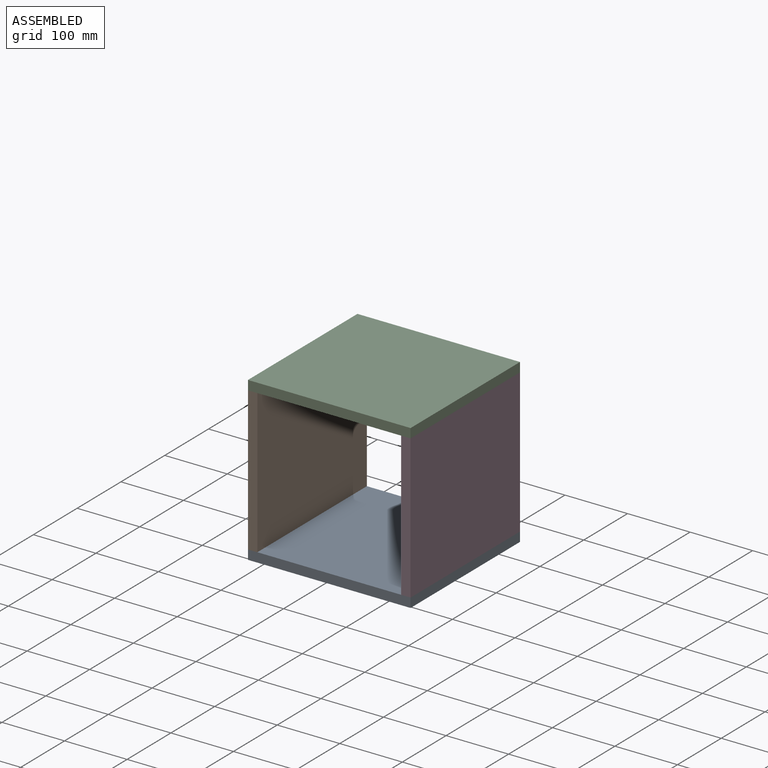
[diagram: assembled view]
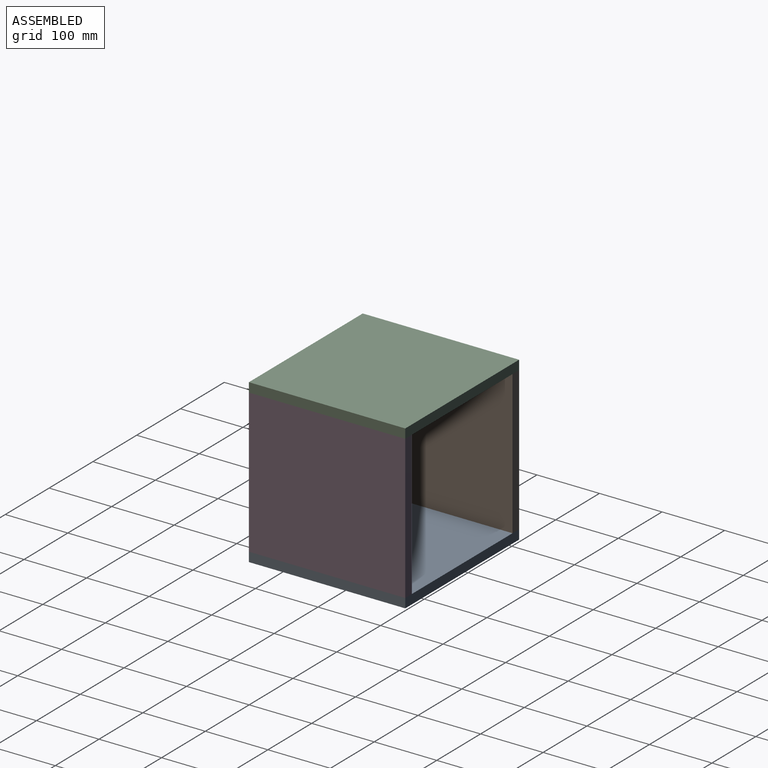
[diagram: assembled view, second angle]
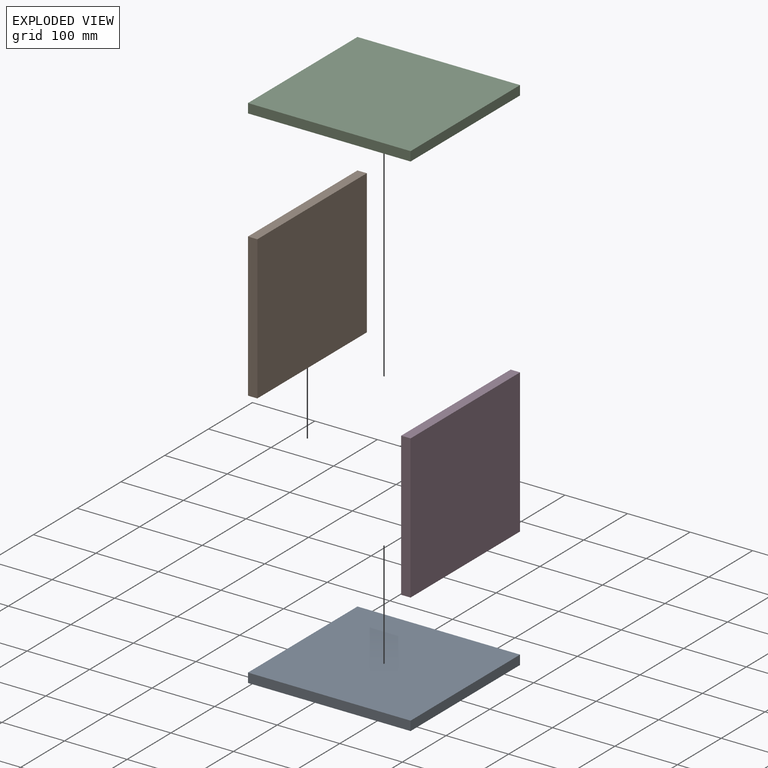
[diagram: exploded view]
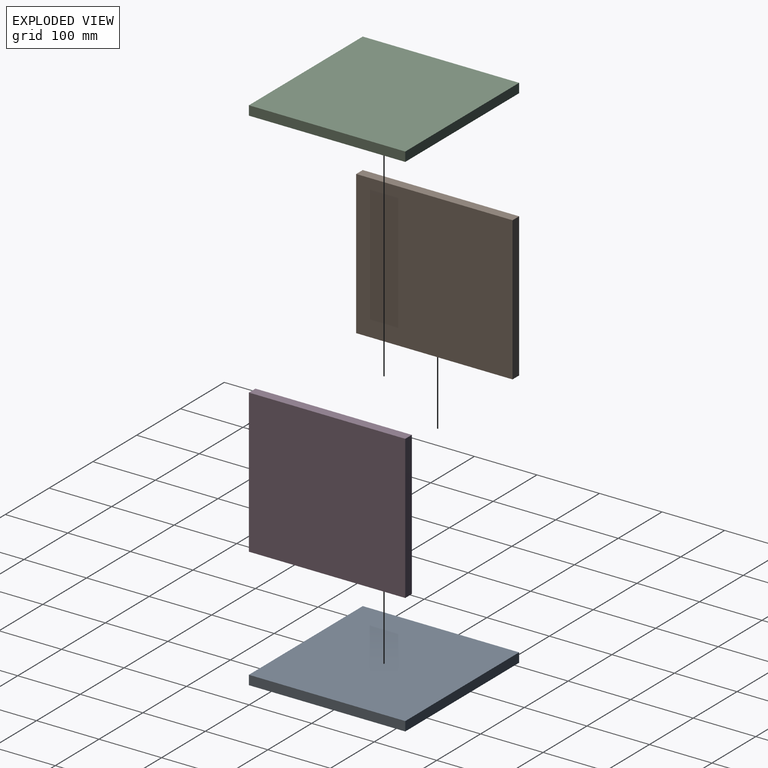
[diagram: exploded view, second angle]
ASSEMBLY  parts=4 mates=3
PART A: 6 faces, bbox 260x15x250 mm
  f0: plane 260x15mm, normal (0,0,1), area 3900mm2, adj f1,f3,f4,f5
  f1: plane 250x15mm, normal (-1,0,0), area 3750mm2, adj f0,f2,f4,f5
  f2: plane 260x15mm, normal (0,0,-1), area 3900mm2, adj f1,f3,f4,f5
  f3: plane 250x15mm, normal (1,0,0), area 3750mm2, adj f0,f2,f4,f5
  f4: plane 260x250mm, normal (0,-1,0), area 65000mm2, adj f0,f1,f2,f3
  f5: plane 260x250mm, normal (0,1,0), area 65000mm2, adj f0,f1,f2,f3
PART B: 6 faces, bbox 230x15x250 mm
  f0: plane 230x15mm, normal (0,0,1), area 3450mm2, adj f1,f3,f4,f5
  f1: plane 250x15mm, normal (-1,0,0), area 3750mm2, adj f0,f2,f4,f5
  f2: plane 230x15mm, normal (0,0,-1), area 3450mm2, adj f1,f3,f4,f5
  f3: plane 250x15mm, normal (1,0,0), area 3750mm2, adj f0,f2,f4,f5
  f4: plane 250x230mm, normal (0,-1,0), area 57500mm2, adj f0,f1,f2,f3
  f5: plane 250x230mm, normal (0,1,0), area 57500mm2, adj f0,f1,f2,f3
PART C: same geometry as A
PART D: same geometry as B
PLACE A rot(axis=(1,0,0),90deg) t=(-90.85,-675.39,-52.37)mm
PLACE B rot(axis=(0.58,0.58,-0.58),120deg) t=(-282.92,-387.62,428.51)mm
PLACE C rot(axis=(1,0,0),90deg) t=(-90.85,-675.39,192.63)mm
PLACE D rot(axis=(0.58,0.58,-0.58),120deg) t=(-37.92,-387.62,428.51)mm
MATE fastened D.f1 <-> C.f4  axis (0,0,1) through (-37.92,-401.89,177.63)mm
MATE fastened B.f1 <-> C.f4  axis (0,0,1) through (-297.92,-401.89,177.63)mm
MATE fastened B.f3 <-> A.f5  axis (0,0,-1) through (-297.92,-401.89,-52.37)mm
